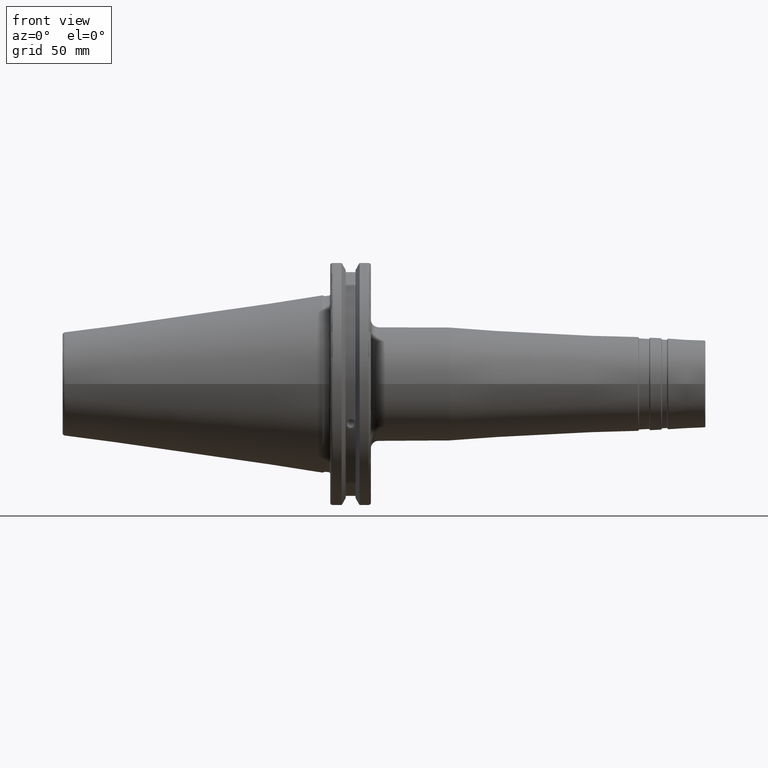
[diagram: clean part render]
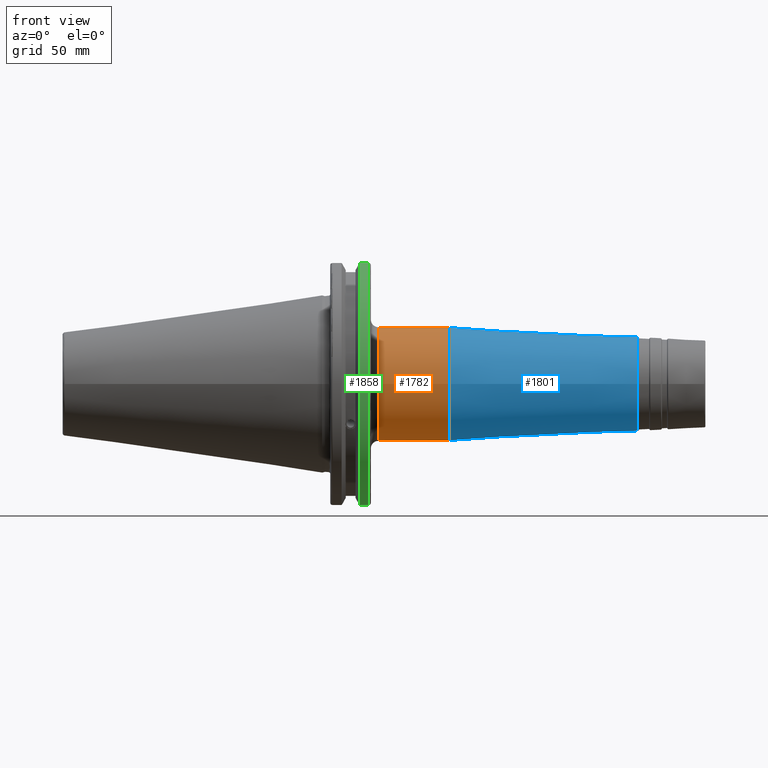
[diagram: same view with three faces highlighted in distinct colors, each labeled with its STEP entity id]
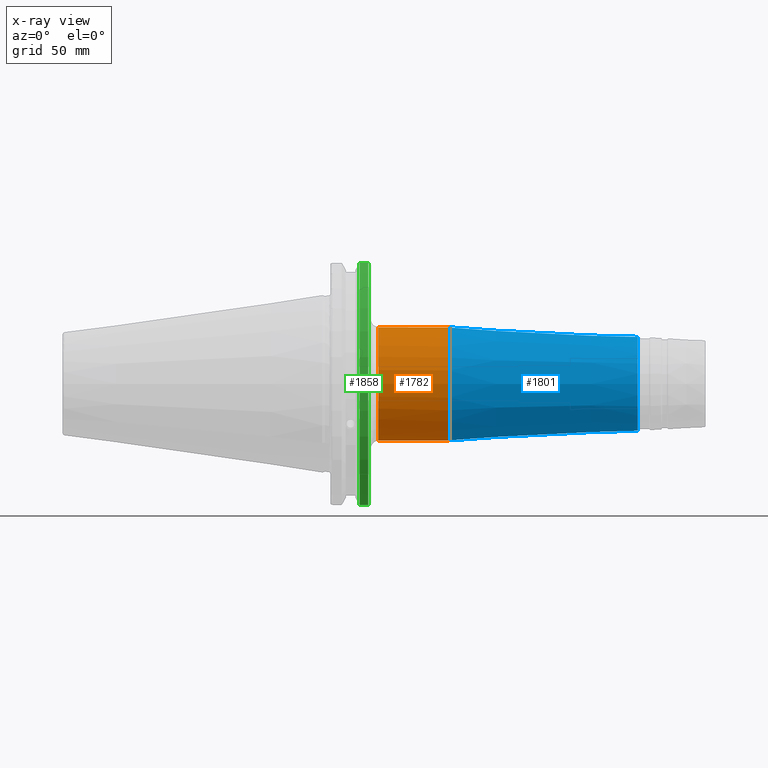
[diagram: x-ray of the same camera — body ghosted, the three highlighted faces saturated]
A machine part, front view with three faces highlighted in distinct colors.
The next image is the same camera in x-ray (body ghosted, the three faces saturated) — at least one of them is partly hidden behind the body in this view.
Their STEP definitions:

[orange] entity #1782 — the highlighted cylindrical surface (bore or boss wall) has radius 22.25 mm, axis along (1, 0, 0).
#176=FACE_OUTER_BOUND('',#284,.T.);
#284=EDGE_LOOP('',(#1229,#1230,#1231,#1232,#1233));
#403=LINE('',#2857,#505);
#505=VECTOR('',#2187,22.25);
#613=CIRCLE('',#1921,22.25);
#616=CIRCLE('',#1924,22.25);
#617=CIRCLE('',#1926,22.25);
#739=VERTEX_POINT('',#2847);
#740=VERTEX_POINT('',#2848);
#742=VERTEX_POINT('',#2855);
#931=EDGE_CURVE('',#739,#740,#613,.T.);
#934=EDGE_CURVE('',#740,#739,#616,.T.);
#935=EDGE_CURVE('',#742,#742,#617,.T.);
#936=EDGE_CURVE('',#742,#739,#403,.T.);
#1229=ORIENTED_EDGE('',*,*,#935,.F.);
#1230=ORIENTED_EDGE('',*,*,#936,.T.);
#1231=ORIENTED_EDGE('',*,*,#934,.F.);
#1232=ORIENTED_EDGE('',*,*,#931,.F.);
#1233=ORIENTED_EDGE('',*,*,#936,.F.);
#1750=CYLINDRICAL_SURFACE('',#1925,22.25);
#1782=ADVANCED_FACE('',(#176),#1750,.T.);
#1921=AXIS2_PLACEMENT_3D('',#2849,#2175,#2176);
#1924=AXIS2_PLACEMENT_3D('',#2853,#2181,#2182);
#1925=AXIS2_PLACEMENT_3D('',#2854,#2183,#2184);
#1926=AXIS2_PLACEMENT_3D('',#2856,#2185,#2186);
#2175=DIRECTION('center_axis',(-1.,0.,0.));
#2176=DIRECTION('ref_axis',(0.,-1.,-1.22464679914735E-16));
#2181=DIRECTION('center_axis',(-1.,0.,0.));
#2182=DIRECTION('ref_axis',(0.,-1.,-1.22464679914735E-16));
#2183=DIRECTION('center_axis',(1.,0.,0.));
#2184=DIRECTION('ref_axis',(0.,1.,0.));
#2185=DIRECTION('center_axis',(1.,0.,0.));
#2186=DIRECTION('ref_axis',(0.,0.,-1.));
#2187=DIRECTION('',(-1.,0.,0.));
#2847=CARTESIAN_POINT('',(22.05,-22.25,-2.72483912810286E-15));
#2848=CARTESIAN_POINT('',(22.05,-2.72483912810286E-15,-22.25));
#2849=CARTESIAN_POINT('Origin',(22.05,0.,0.));
#2853=CARTESIAN_POINT('Origin',(22.05,0.,0.));
#2854=CARTESIAN_POINT('Origin',(34.4370161947135,0.,0.));
#2855=CARTESIAN_POINT('',(49.8240323894269,-22.25,-2.72483912810286E-15));
#2856=CARTESIAN_POINT('Origin',(49.8240323894269,0.,0.));
#2857=CARTESIAN_POINT('',(34.4370161947135,-22.25,-2.72483912810286E-15));

[blue] entity #1801 — the highlighted conical surface has half-angle 3 deg.
#97=CONICAL_SURFACE('',#1990,20.3127744457545,0.0523598775598298);
#195=FACE_OUTER_BOUND('',#304,.T.);
#304=EDGE_LOOP('',(#1348,#1349,#1350,#1351,#1352));
#422=LINE('',#2986,#524);
#524=VECTOR('',#2334,20.3127744457545);
#617=CIRCLE('',#1926,22.25);
#661=CIRCLE('',#1988,18.387635362879);
#662=CIRCLE('',#1989,18.387635362879);
#742=VERTEX_POINT('',#2855);
#787=VERTEX_POINT('',#2980);
#788=VERTEX_POINT('',#2982);
#935=EDGE_CURVE('',#742,#742,#617,.T.);
#998=EDGE_CURVE('',#787,#788,#661,.T.);
#999=EDGE_CURVE('',#788,#787,#662,.T.);
#1000=EDGE_CURVE('',#788,#742,#422,.T.);
#1348=ORIENTED_EDGE('',*,*,#999,.F.);
#1349=ORIENTED_EDGE('',*,*,#1000,.T.);
#1350=ORIENTED_EDGE('',*,*,#935,.T.);
#1351=ORIENTED_EDGE('',*,*,#1000,.F.);
#1352=ORIENTED_EDGE('',*,*,#998,.F.);
#1801=ADVANCED_FACE('',(#195),#97,.T.);
#1926=AXIS2_PLACEMENT_3D('',#2856,#2185,#2186);
#1988=AXIS2_PLACEMENT_3D('',#2983,#2328,#2329);
#1989=AXIS2_PLACEMENT_3D('',#2984,#2330,#2331);
#1990=AXIS2_PLACEMENT_3D('',#2985,#2332,#2333);
#2185=DIRECTION('center_axis',(1.,0.,0.));
#2186=DIRECTION('ref_axis',(0.,0.,-1.));
#2328=DIRECTION('center_axis',(1.,0.,0.));
#2329=DIRECTION('ref_axis',(0.,-1.,3.06161699786838E-17));
#2330=DIRECTION('center_axis',(1.,0.,0.));
#2331=DIRECTION('ref_axis',(0.,-1.,3.06161699786838E-17));
#2332=DIRECTION('center_axis',(-1.,0.,0.));
#2333=DIRECTION('ref_axis',(0.,1.,0.));
#2334=DIRECTION('',(-0.998629534754574,-0.0523359562429438,-6.4093061293237E-18));
#2855=CARTESIAN_POINT('',(49.8240323894269,-22.25,-2.72483912810286E-15));
#2856=CARTESIAN_POINT('Origin',(49.8240323894269,0.,0.));
#2980=CARTESIAN_POINT('',(123.522339968181,-2.25183587910384E-15,18.387635362879));
#2982=CARTESIAN_POINT('',(123.522339968181,-18.387635362879,-2.25183587910384E-15));
#2983=CARTESIAN_POINT('Origin',(123.522339968181,0.,-2.8147948488798E-15));
#2984=CARTESIAN_POINT('Origin',(123.522339968181,0.,-2.8147948488798E-15));
#2985=CARTESIAN_POINT('Origin',(86.7884979849462,0.,0.));
#2986=CARTESIAN_POINT('',(86.7884979849462,-20.3127744457545,-2.48759742067954E-15));

[green] entity #1858 — the highlighted cylindrical surface (partial cylindrical patch) has radius 49.2125 mm, axis along (1, 0, 0).
#252=FACE_OUTER_BOUND('',#375,.T.);
#375=EDGE_LOOP('',(#1655,#1656,#1657,#1658));
#491=LINE('',#3683,#593);
#492=LINE('',#3685,#594);
#593=VECTOR('',#2617,10.);
#594=VECTOR('',#2620,10.);
#674=CIRCLE('',#2015,49.2125);
#702=CIRCLE('',#2070,49.2125);
#813=VERTEX_POINT('',#3151);
#814=VERTEX_POINT('',#3155);
#878=VERTEX_POINT('',#3526);
#879=VERTEX_POINT('',#3535);
#1032=EDGE_CURVE('',#814,#813,#674,.T.);
#1121=EDGE_CURVE('',#878,#879,#702,.T.);
#1167=EDGE_CURVE('',#879,#813,#491,.T.);
#1168=EDGE_CURVE('',#814,#878,#492,.T.);
#1655=ORIENTED_EDGE('',*,*,#1121,.F.);
#1656=ORIENTED_EDGE('',*,*,#1168,.F.);
#1657=ORIENTED_EDGE('',*,*,#1032,.T.);
#1658=ORIENTED_EDGE('',*,*,#1167,.F.);
#1767=CYLINDRICAL_SURFACE('',#2098,49.2125);
#1858=ADVANCED_FACE('',(#252),#1767,.T.);
#2015=AXIS2_PLACEMENT_3D('',#3156,#2393,#2394);
#2070=AXIS2_PLACEMENT_3D('',#3536,#2538,#2539);
#2098=AXIS2_PLACEMENT_3D('',#3684,#2618,#2619);
#2393=DIRECTION('center_axis',(1.,0.,0.));
#2394=DIRECTION('ref_axis',(0.,0.,-1.));
#2538=DIRECTION('center_axis',(1.,0.,0.));
#2539=DIRECTION('ref_axis',(0.,-1.,1.60812264967664E-16));
#2617=DIRECTION('',(-1.,0.,0.));
#2618=DIRECTION('center_axis',(1.,0.,0.));
#2619=DIRECTION('ref_axis',(0.,-1.,1.22464679914735E-16));
#2620=DIRECTION('',(1.,0.,0.));
#3151=CARTESIAN_POINT('',(14.6602090340487,-13.4317035994433,-47.3440544806494));
#3155=CARTESIAN_POINT('',(14.6602090340487,-13.4317035994433,47.3440544806494));
#3156=CARTESIAN_POINT('Origin',(14.6602090340487,0.,0.));
#3526=CARTESIAN_POINT('',(18.05,-13.4317035994433,47.3440544806494));
#3535=CARTESIAN_POINT('',(18.05,-13.4317035994433,-47.3440544806494));
#3536=CARTESIAN_POINT('Origin',(18.05,0.,0.));
#3683=CARTESIAN_POINT('',(16.8551045170244,-13.4317035994433,-47.3440544806494));
#3684=CARTESIAN_POINT('Origin',(16.8551045170244,0.,0.));
#3685=CARTESIAN_POINT('',(16.8551045170244,-13.4317035994433,47.3440544806494));